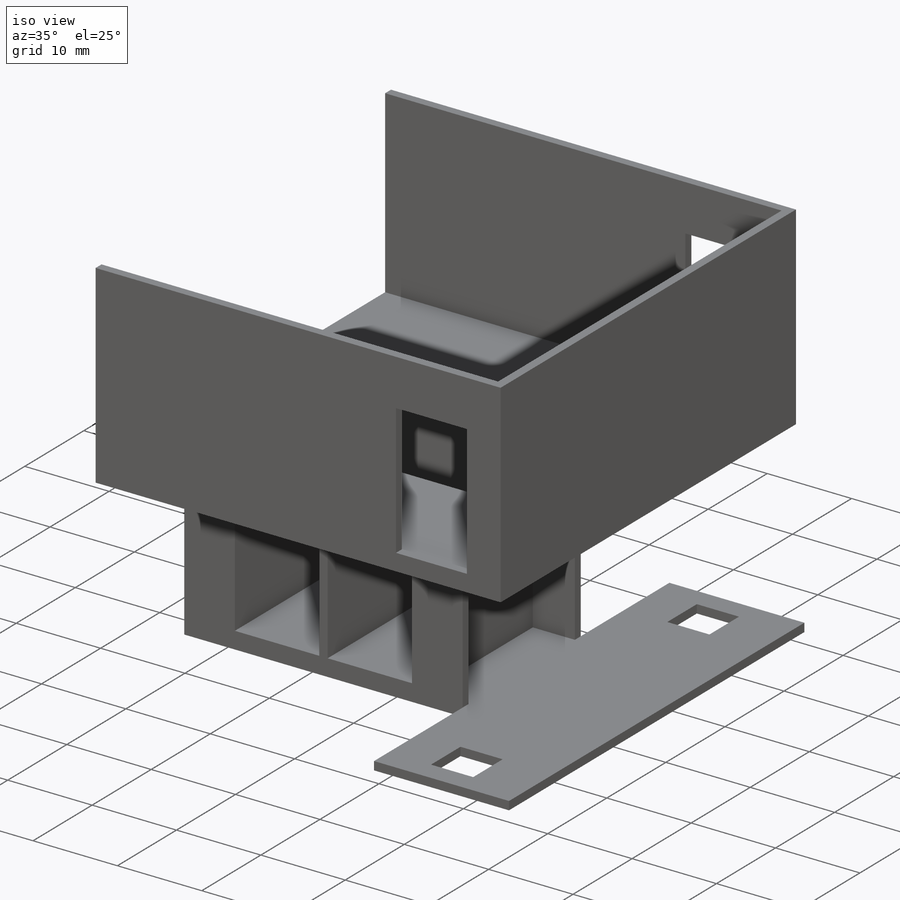
[diagram: iso view]
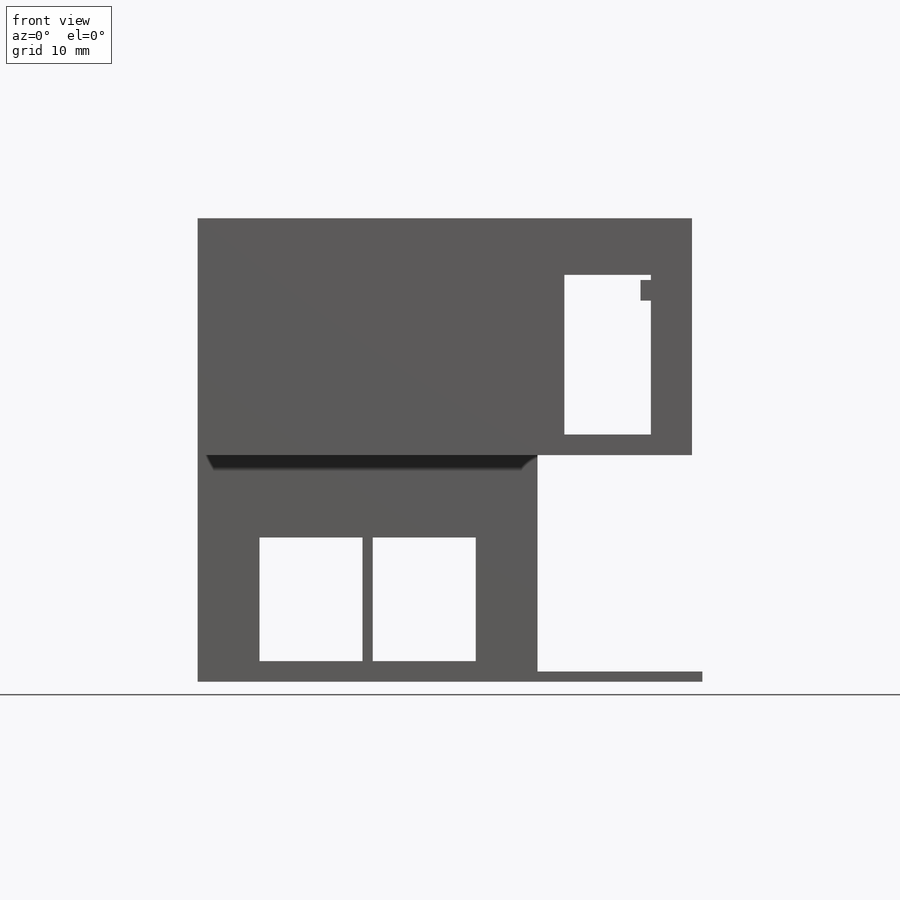
[diagram: front view]
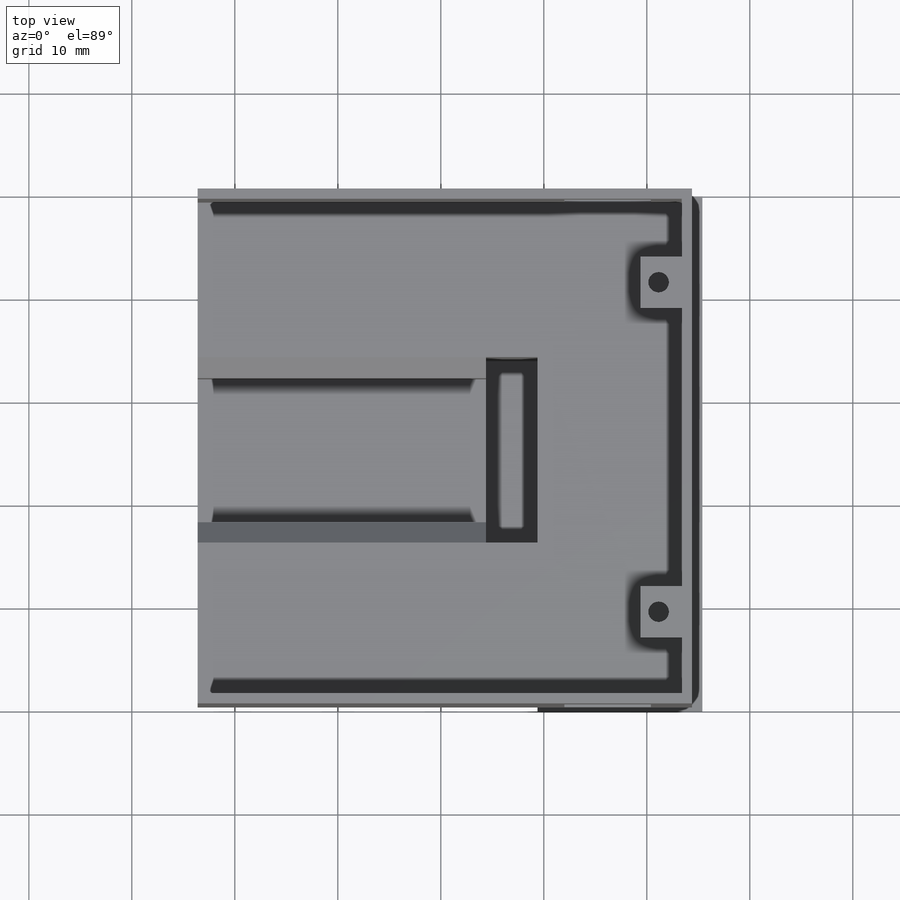
[diagram: top view]
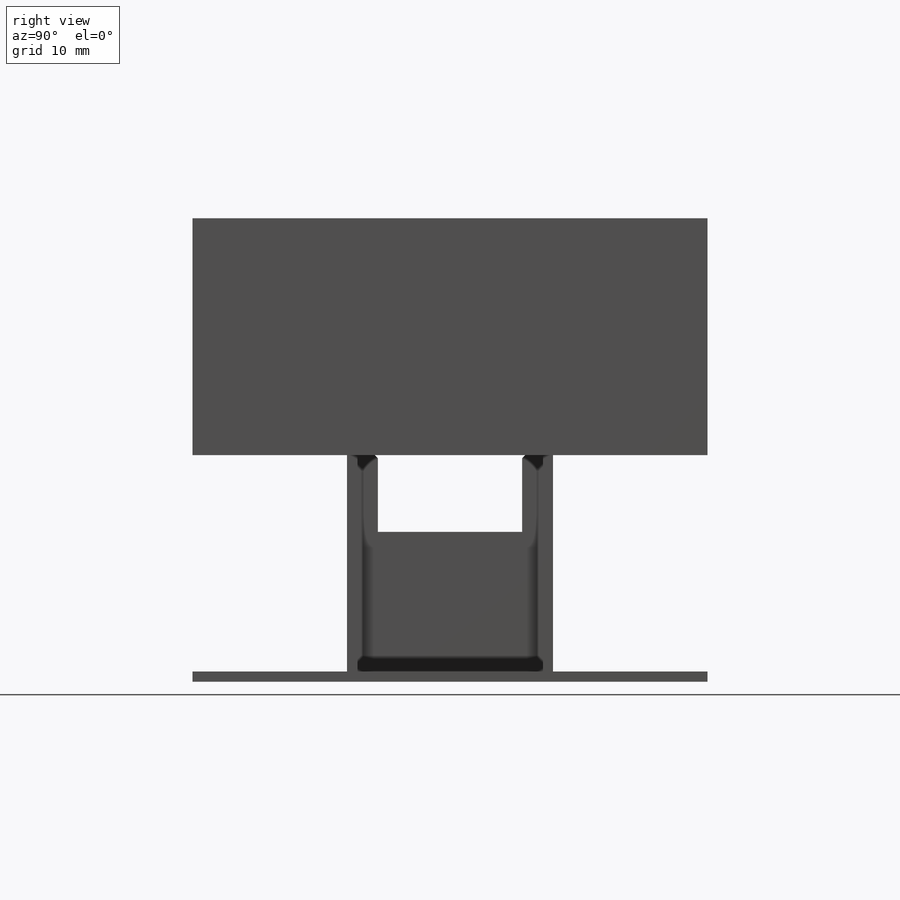
[diagram: right view]
SOLIDWORKS PART (.sldprt)
format: sldprt  version: not decoded by parser v0  size: 523,776 bytes
history: native  units: mm
features: sketch x22, cut_extrude x16, extrude x6, material x1, chamfer x1 (+13 scaffold rows collapsed)
feature tree (59):
  scaffold x13  (default folders/planes/origin — collapsed)
  material  "Material <not specified>"
  sketch  "Sketch1"  dims[D1=50.0mm D2=45.0mm]
  extrude  "Boss-Extrude1"  Depth=45mm
  sketch  "Sketch2"  dims[D1=22.0mm D2=22.0mm]
  cut_extrude  "Cut-Extrude2"  Depth=15mm
  sketch  "Sketch3"  dims[D1=10.0mm D2=12.0mm D3=2.0mm D4=6.0mm D5=6.0mm]
  cut_extrude  "Cut-Extrude3"  Depth=70mm
  sketch  "Sketch4"  dims[c1.D1=10.0mm c1.D2=12.0mm c1.D3=1.0mm c1.D4=~3.065992mm c2.D4=90.0deg c3.D4=2.0mm]
  cut_extrude  "Cut-Extrude4"  Depth=70mm
  sketch  "Sketch5"  dims[D1=22.0mm D2=22.0mm D3=6.0mm D4=6.0mm]
  cut_extrude  "Cut-Extrude5"  Depth=15mm
  sketch  "Sketch6"  dims[D1=15.0mm]
  cut_extrude  "Cut-Extrude6"  Depth=15mm
  sketch  "Sketch7"  dims[D1=22.0mm]
  cut_extrude  "Cut-Extrude7"  Depth=15mm
  sketch  "Sketch8"  dims[D1=1.0mm D2=1.0mm]
  cut_extrude  "Cut-Extrude8"  Depth=44mm
  sketch  "Sketch9"
  cut_extrude  "Cut-Extrude9"  Depth=44mm
  sketch  "Sketch10"  dims[D1=1.0mm D2=1.0mm]
  cut_extrude  "Cut-Extrude10"  Depth=44mm
  sketch  "Sketch11"
  cut_extrude  "Cut-Extrude11"  Depth=50mm
  sketch  "Sketch12"  dims[D1=1.0mm D2=0.0mm]
  cut_extrude  "Cut-Extrude12"  Depth=10mm
  sketch  "Sketch14"  dims[D1=1.0mm D2=0.0mm]
  cut_extrude  "Cut-Extrude17"  Depth=5mm
  sketch  "Sketch16"  dims[D1=50.0mm D2=0.0mm]
  extrude  "Boss-Extrude2"  Depth=1mm
  sketch  "Sketch18"  dims[D1=16.0mm]
  extrude  "Boss-Extrude3"  Depth=1mm
  sketch  "Sketch19"  dims[D1=5.0mm D2=5.0mm D3=5.0mm D4=2.5mm D5=2.5mm D6=5.0mm D7=5.0mm]
  cut_extrude  "Cut-Extrude18"  Depth=1mm
  sketch  "Sketch21"
  extrude  "Boss-Extrude4"  Depth=15mm
  sketch  "Sketch22"  dims[D1=8.4mm D2=15.5mm D3=2.0mm D4=4.0mm]
  cut_extrude  "Cut-Extrude21"  Depth=90mm
  sketch  "Sketch24"
  cut_extrude  "Cut-Extrude22"  Depth=14mm
  sketch  "Sketch25"  dims[D1=2.0mm D2=2.0mm]
  extrude  "Boss-Extrude5"  Depth=9.135334mm
  chamfer  "Chamfer1"  Distance=2mm Angle=45deg
  sketch  "Sketch26"  dims[D1=27.0mm D2=6.0mm D3=6.0mm D4=5.5mm D5=5.0mm D6=5.0mm D7=2.0mm D8=2.0mm D9=5.5mm]
  extrude  "Boss-Extrude7"  Depth=5mm
  sketch  "Sketch27"  dims[c1.D3=~1.392605mm c1.D4=2.0mm c1.D1=2.5mm c1.D2=1.75mm c2.D3=2.5mm]
  cut_extrude  "Cut-Extrude23"  Depth=5mm
decode coverage: 41 of 45 modeling features carry decoded parameters
note: ~ marks probable driven/reference dimensions
note: suppression state not decoded; provenance and decode notes live in map.json
